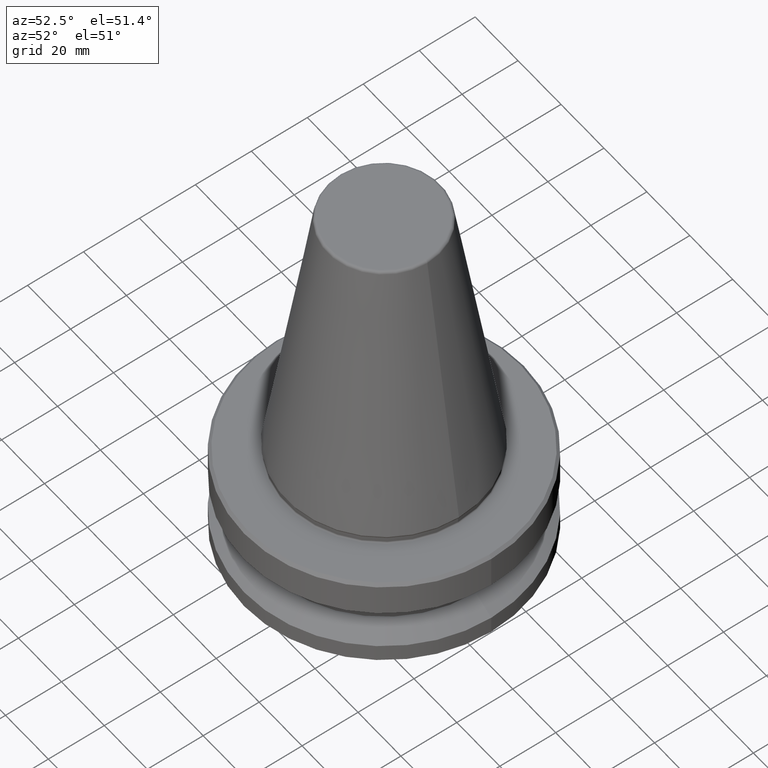
[diagram: clean part render]
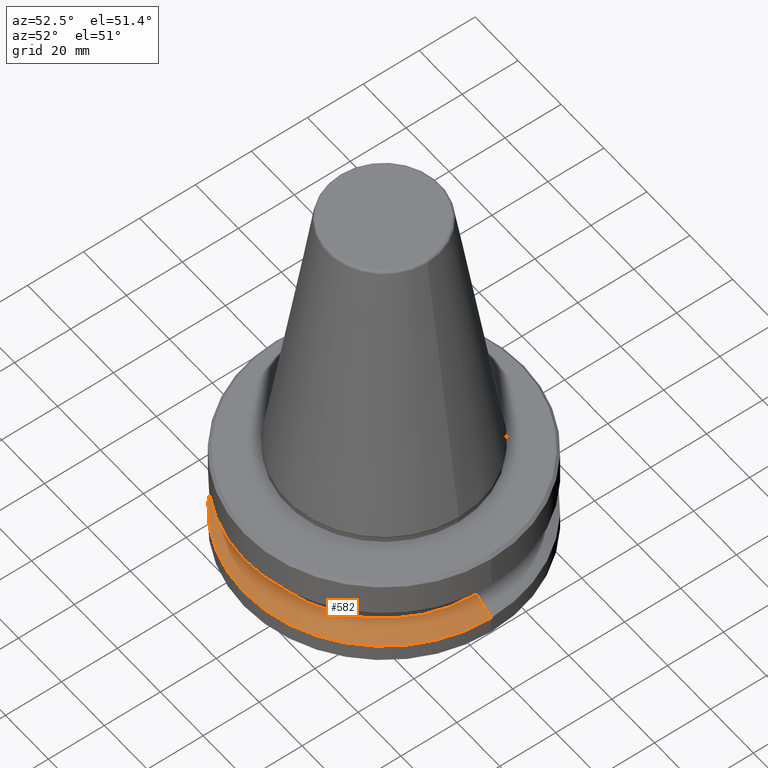
[diagram: same view with one face highlighted and labeled with its STEP entity id]
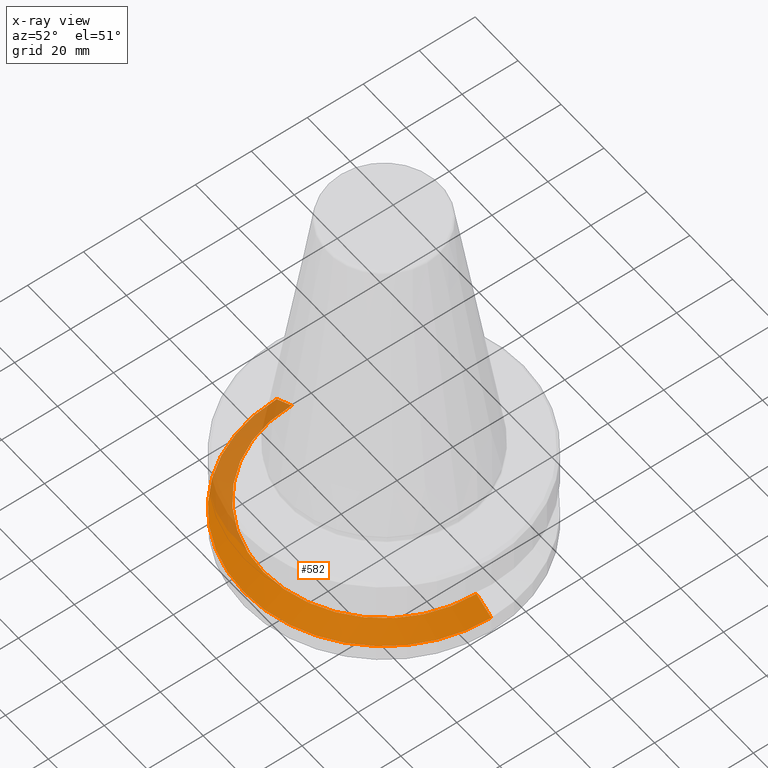
[diagram: x-ray of the same camera — body ghosted, the highlighted face saturated]
A machine part, auxiliary view. The second image highlights one B-rep face of the part: STEP entity #582.
The next image is the same camera in x-ray: the body ghosted, the highlighted face saturated — about 24% of this face is hidden behind the body in this view.
In plain terms, the highlighted conical surface has half-angle 60 deg.
Its self-contained STEP definition (entity closure, byte-faithful):
#1 = DIRECTION ( 'NONE',  ( -0.0000000000000000000, -0.0000000000000000000, 1.000000000000000000 ) ) ;
#32 = FACE_OUTER_BOUND ( 'NONE', #116, .T. ) ;
#86 = LINE ( 'NONE', #369, #252 ) ;
#116 = EDGE_LOOP ( 'NONE', ( #593, #362, #138, #999 ) ) ;
#138 = ORIENTED_EDGE ( 'NONE', *, *, #535, .T. ) ;
#143 = CIRCLE ( 'NONE', #841, 49.99999999999982200 ) ;
#215 = CARTESIAN_POINT ( 'NONE',  ( 0.0000000000000000000, 0.0000000000000000000, -30.69977999671412400 ) ) ;
#224 = VERTEX_POINT ( 'NONE', #968 ) ;
#228 = CIRCLE ( 'NONE', #260, 43.07217782648930900 ) ;
#252 = VECTOR ( 'NONE', #450, 1000.000000000000000 ) ;
#260 = AXIS2_PLACEMENT_3D ( 'NONE', #462, #1, #551 ) ;
#286 = CARTESIAN_POINT ( 'NONE',  ( 0.0000000000000000000, 0.0000000000000000000, -30.69977999671412400 ) ) ;
#292 = DIRECTION ( 'NONE',  ( -1.000000000000000000, 0.0000000000000000000, 0.0000000000000000000 ) ) ;
#299 = CARTESIAN_POINT ( 'NONE',  ( 43.07217782648930900, 5.699027233244158500E-015, -26.69999999993998000 ) ) ;
#362 = ORIENTED_EDGE ( 'NONE', *, *, #478, .F. ) ;
#365 = DIRECTION ( 'NONE',  ( -0.8660254037844390400, 0.0000000000000000000, -0.4999999999999993300 ) ) ;
#369 = CARTESIAN_POINT ( 'NONE',  ( 49.99999999999982200, 6.123233995736744000E-015, -30.69977999671412400 ) ) ;
#410 = EDGE_CURVE ( 'NONE', #870, #224, #86, .T. ) ;
#422 = DIRECTION ( 'NONE',  ( 1.000000000000000000, 0.0000000000000000000, 0.0000000000000000000 ) ) ;
#444 = DIRECTION ( 'NONE',  ( 0.0000000000000000000, 0.0000000000000000000, -1.000000000000000000 ) ) ;
#450 = DIRECTION ( 'NONE',  ( 0.8660254037844390400, 1.060575238724907400E-016, -0.4999999999999993300 ) ) ;
#462 = CARTESIAN_POINT ( 'NONE',  ( 0.0000000000000000000, 0.0000000000000000000, -26.69999999993998000 ) ) ;
#478 = EDGE_CURVE ( 'NONE', #844, #870, #228, .T. ) ;
#490 = VERTEX_POINT ( 'NONE', #930 ) ;
#535 = EDGE_CURVE ( 'NONE', #844, #490, #574, .T. ) ;
#551 = DIRECTION ( 'NONE',  ( 1.000000000000000000, 0.0000000000000000000, 0.0000000000000000000 ) ) ;
#574 = LINE ( 'NONE', #829, #714 ) ;
#582 = ADVANCED_FACE ( 'NONE', ( #32 ), #836, .T. ) ;
#593 = ORIENTED_EDGE ( 'NONE', *, *, #410, .F. ) ;
#649 = EDGE_CURVE ( 'NONE', #490, #224, #143, .T. ) ;
#666 = CARTESIAN_POINT ( 'NONE',  ( -43.07217782648930900, 0.0000000000000000000, -26.69999999993998000 ) ) ;
#714 = VECTOR ( 'NONE', #365, 1000.000000000000000 ) ;
#750 = AXIS2_PLACEMENT_3D ( 'NONE', #286, #444, #292 ) ;
#829 = CARTESIAN_POINT ( 'NONE',  ( -49.99999999999982200, 0.0000000000000000000, -30.69977999671412400 ) ) ;
#836 = CONICAL_SURFACE ( 'NONE', #750, 49.99999999999982200, 1.047197551196598500 ) ;
#841 = AXIS2_PLACEMENT_3D ( 'NONE', #215, #890, #422 ) ;
#844 = VERTEX_POINT ( 'NONE', #666 ) ;
#870 = VERTEX_POINT ( 'NONE', #299 ) ;
#890 = DIRECTION ( 'NONE',  ( -0.0000000000000000000, -0.0000000000000000000, 1.000000000000000000 ) ) ;
#930 = CARTESIAN_POINT ( 'NONE',  ( -49.99999999999982200, 6.123233995736744000E-015, -30.69977999671412400 ) ) ;
#968 = CARTESIAN_POINT ( 'NONE',  ( 49.99999999999982200, 0.0000000000000000000, -30.69977999671412400 ) ) ;
#999 = ORIENTED_EDGE ( 'NONE', *, *, #649, .T. ) ;